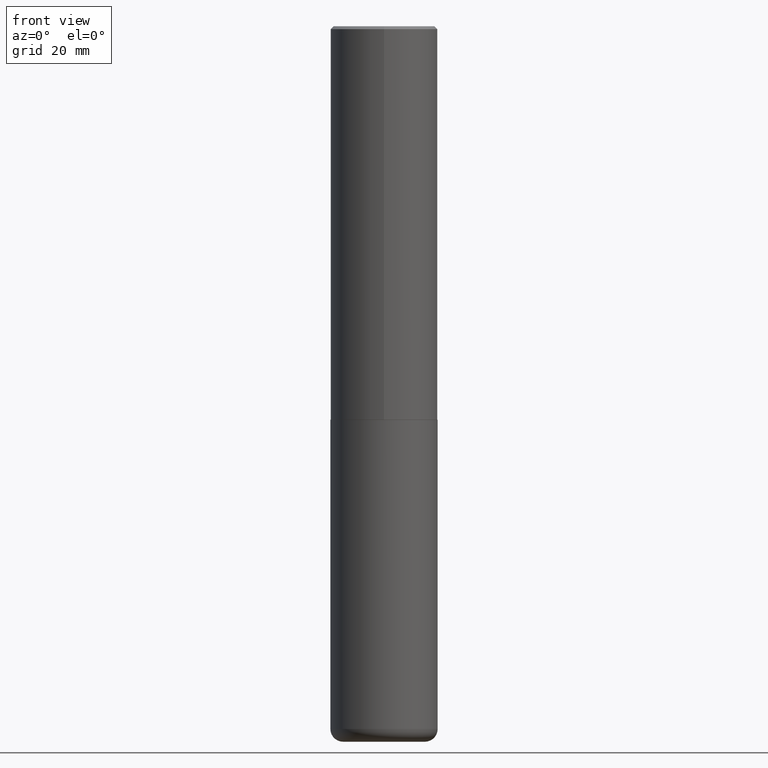
[diagram: clean part render]
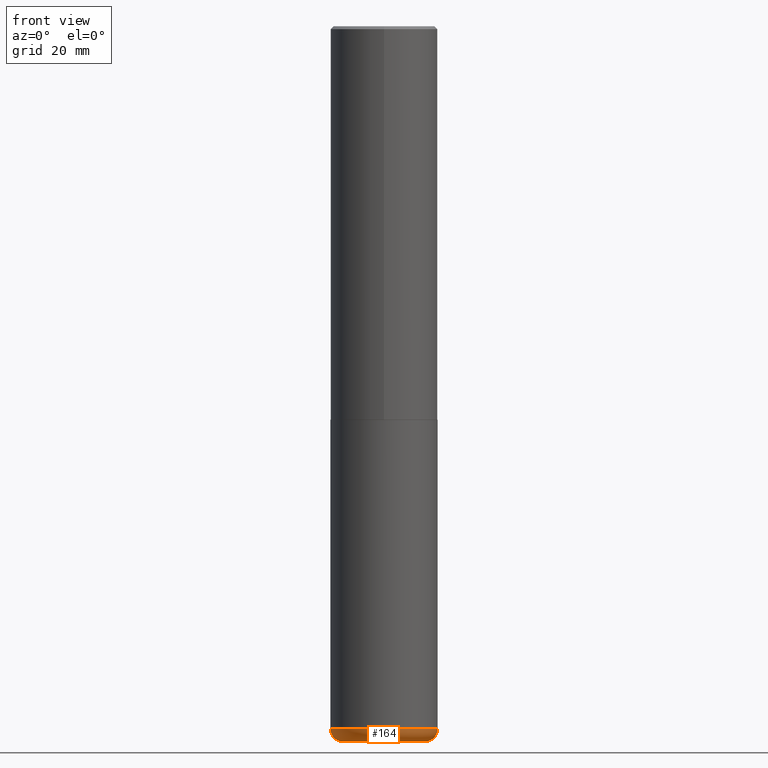
[diagram: same view with one face highlighted and labeled with its STEP entity id]
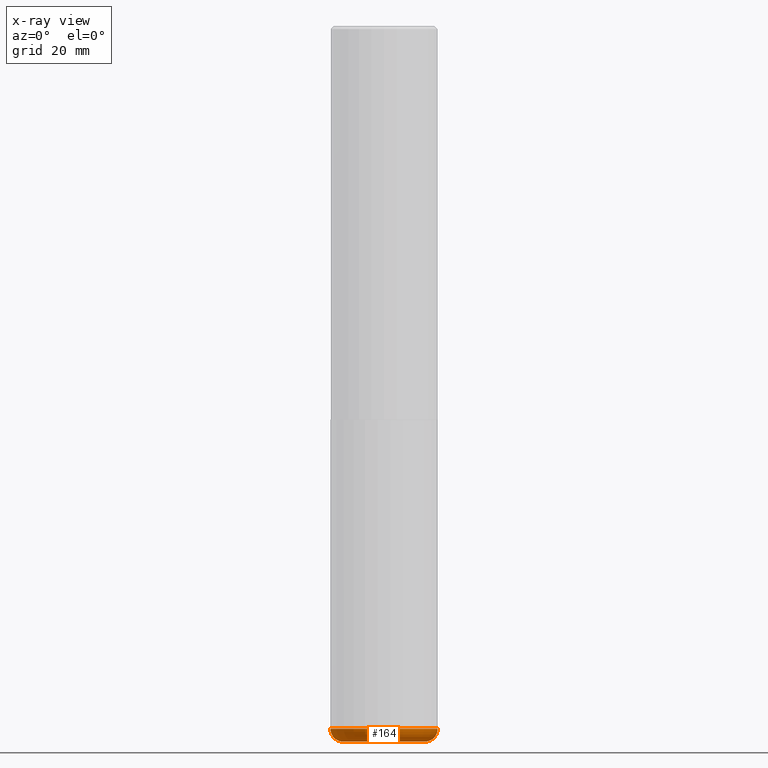
[diagram: x-ray of the same camera — body ghosted, the highlighted face saturated]
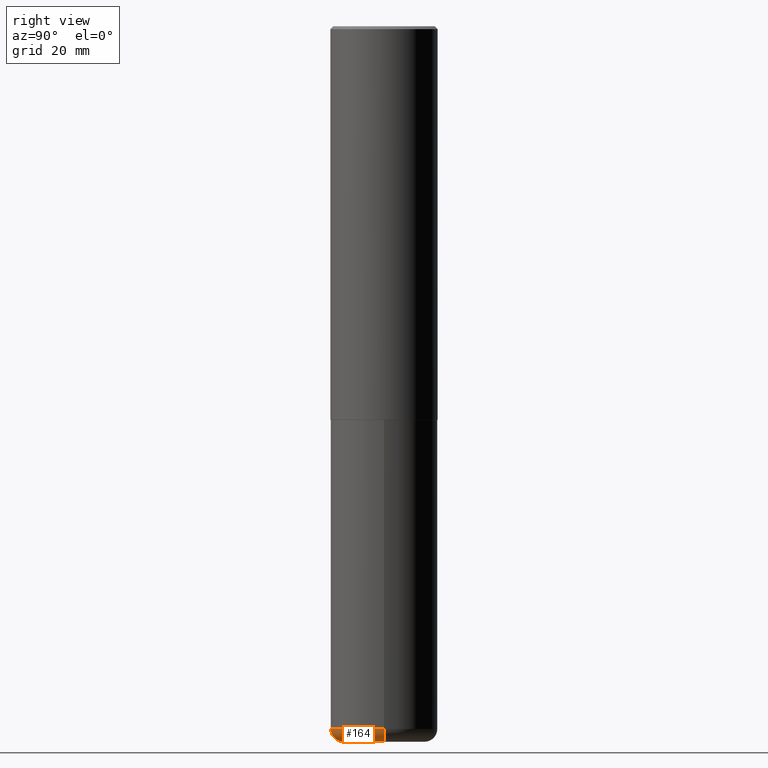
[diagram: same view with one face highlighted and labeled with its STEP entity id]
A machine part, front view. The second image highlights one B-rep face of the part: STEP entity #164.
The next image is the same camera in x-ray: the body ghosted, the highlighted face saturated — about 0% of this face is hidden behind the body in this view.
A second angle (right view) of the same face is appended — the face is thin or edge-on in the first view.
In plain terms, the highlighted toroidal blend (fillet) surface has major radius 7.239 mm and minor (blend) radius 2.286 mm.
Its self-contained STEP definition (entity closure, byte-faithful):
#9 = EDGE_CURVE ( 'NONE', #144, #190, #141, .T. ) ;
#26 = AXIS2_PLACEMENT_3D ( 'NONE', #230, #354, #262 ) ;
#33 = DIRECTION ( 'NONE',  ( 7.105427357601001859E-15, 1.000000000000000000, -3.491481338843145583E-15 ) ) ;
#42 = CARTESIAN_POINT ( 'NONE',  ( -0.3749999999999999445, -1.447863811461947092E-14, -4.910000000000000142 ) ) ;
#43 = AXIS2_PLACEMENT_3D ( 'NONE', #259, #290, #418 ) ;
#47 = VERTEX_POINT ( 'NONE', #165 ) ;
#55 = ORIENTED_EDGE ( 'NONE', *, *, #172, .F. ) ;
#65 = AXIS2_PLACEMENT_3D ( 'NONE', #109, #399, #138 ) ;
#74 = CARTESIAN_POINT ( 'NONE',  ( 0.2850000000000000311, -1.944755105735631653E-14, -5.000000000000000000 ) ) ;
#78 = ORIENTED_EDGE ( 'NONE', *, *, #100, .T. ) ;
#100 = EDGE_CURVE ( 'NONE', #144, #314, #177, .T. ) ;
#109 = CARTESIAN_POINT ( 'NONE',  ( 0.2850000000000000311, -1.913331773686043011E-14, -4.910000000000000142 ) ) ;
#130 = DIRECTION ( 'NONE',  ( -2.445468806185136597E-29, 3.491481338843145583E-15, 1.000000000000000000 ) ) ;
#132 = CARTESIAN_POINT ( 'NONE',  ( -0.2850000000000000311, -1.495549900595945556E-14, -5.000000000000000000 ) ) ;
#138 = DIRECTION ( 'NONE',  ( 1.000000000000000000, -6.982962677686273810E-15, 0.000000000000000000 ) ) ;
#141 = CIRCLE ( 'NONE', #162, 0.08999999999999992728 ) ;
#144 = VERTEX_POINT ( 'NONE', #132 ) ;
#156 = ORIENTED_EDGE ( 'NONE', *, *, #201, .T. ) ;
#162 = AXIS2_PLACEMENT_3D ( 'NONE', #356, #33, #361 ) ;
#164 = ADVANCED_FACE ( 'NONE', ( #234 ), #390, .T. ) ;
#165 = CARTESIAN_POINT ( 'NONE',  ( 0.3749999999999999445, -1.976178437785219664E-14, -4.910000000000000142 ) ) ;
#172 = EDGE_CURVE ( 'NONE', #190, #47, #296, .T. ) ;
#177 = CIRCLE ( 'NONE', #26, 0.2850000000000000311 ) ;
#190 = VERTEX_POINT ( 'NONE', #42 ) ;
#201 = EDGE_CURVE ( 'NONE', #314, #47, #211, .T. ) ;
#211 = CIRCLE ( 'NONE', #65, 0.08999999999999992728 ) ;
#230 = CARTESIAN_POINT ( 'NONE',  ( 1.222734403092568523E-28, -1.745740669421572989E-14, -5.000000000000000000 ) ) ;
#234 = FACE_OUTER_BOUND ( 'NONE', #341, .T. ) ;
#256 = ORIENTED_EDGE ( 'NONE', *, *, #9, .F. ) ;
#259 = CARTESIAN_POINT ( 'NONE',  ( 1.200725183836902132E-28, -1.714317337371984662E-14, -4.910000000000000142 ) ) ;
#262 = DIRECTION ( 'NONE',  ( 1.000000000000000000, -6.982962677686266711E-15, 0.000000000000000000 ) ) ;
#290 = DIRECTION ( 'NONE',  ( -2.445468806185136597E-29, 3.491481338843145583E-15, 1.000000000000000000 ) ) ;
#296 = CIRCLE ( 'NONE', #324, 0.3749999999999999445 ) ;
#314 = VERTEX_POINT ( 'NONE', #74 ) ;
#324 = AXIS2_PLACEMENT_3D ( 'NONE', #417, #130, #372 ) ;
#341 = EDGE_LOOP ( 'NONE', ( #256, #78, #156, #55 ) ) ;
#354 = DIRECTION ( 'NONE',  ( -2.445468806185136597E-29, 3.491481338843145583E-15, 1.000000000000000000 ) ) ;
#356 = CARTESIAN_POINT ( 'NONE',  ( -0.2850000000000000311, -1.511812657680356008E-14, -4.910000000000000142 ) ) ;
#361 = DIRECTION ( 'NONE',  ( -1.000000000000000000, 7.105427357600996337E-15, 0.000000000000000000 ) ) ;
#372 = DIRECTION ( 'NONE',  ( 1.000000000000000000, -6.982962677686269077E-15, 0.000000000000000000 ) ) ;
#390 = TOROIDAL_SURFACE ( 'NONE', #43, 0.2850000000000000311, 0.08999999999999989952 ) ;
#399 = DIRECTION ( 'NONE',  ( -6.982962677686266711E-15, -1.000000000000000000, 3.491481338843145583E-15 ) ) ;
#417 = CARTESIAN_POINT ( 'NONE',  ( 1.200725183836902132E-28, -1.714317337371984662E-14, -4.910000000000000142 ) ) ;
#418 = DIRECTION ( 'NONE',  ( 1.000000000000000000, -6.982962677686269077E-15, 4.883557194083113462E-29 ) ) ;